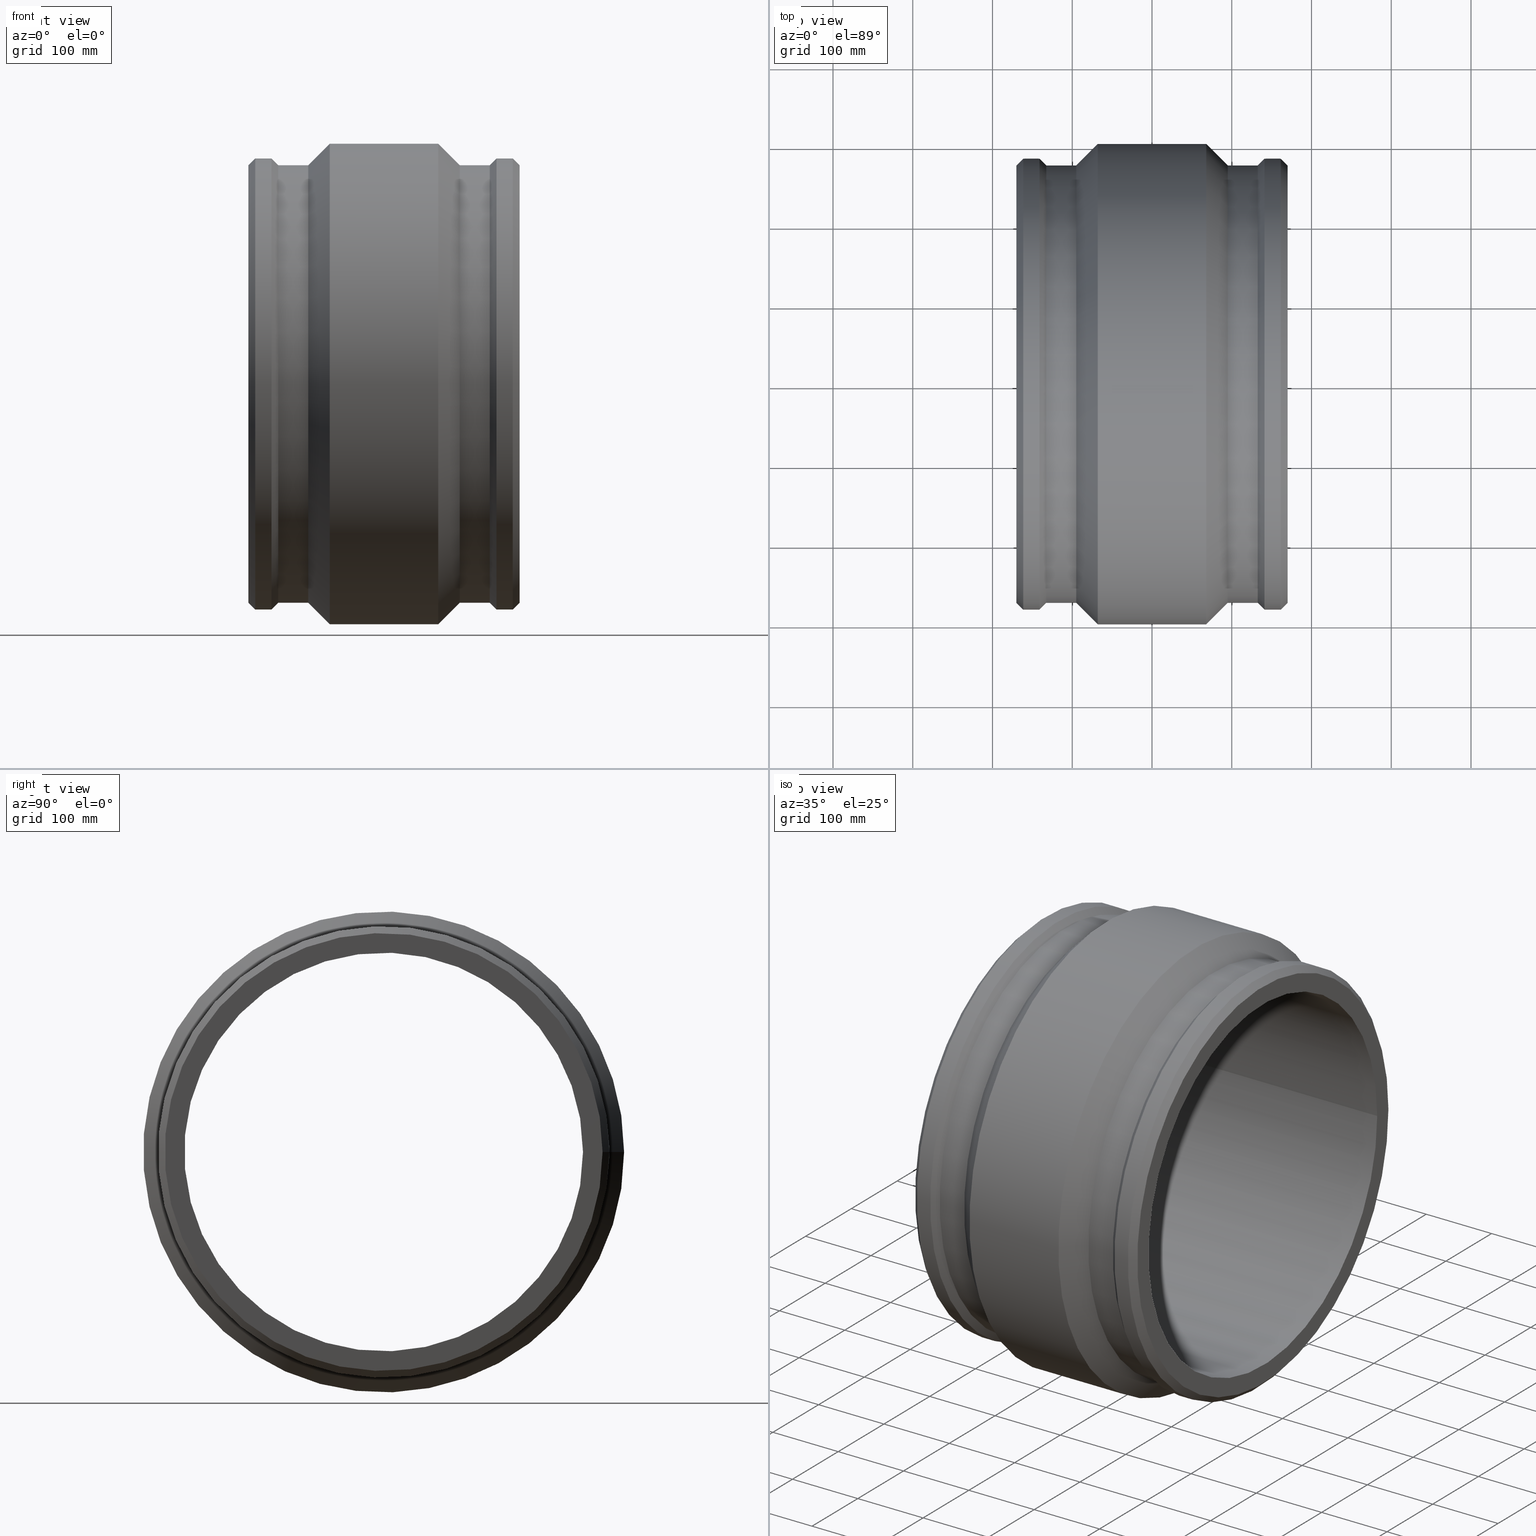
[diagram: canonical four-view strip — front | top / right | iso, engineering-drawing reading convention]
A machine part, canonical four-view strip (front | top / right | iso — engineering-drawing reading convention). The complete STEP part file that produces these views, byte-faithful:
ISO-10303-21;
HEADER;
/* Generated by software containing ST-Developer
 * from STEP Tools, Inc. (www.steptools.com) 
 */

FILE_DESCRIPTION(
/* description */ ('PLASSON COUPLER 500'),
/* implementation_level */ '2;1');

FILE_NAME(
/* name */ 
'C:\\Dropbox\\KIMPROJECTS-Inventor\\99-16-3568-Processing\\ElectroFusi
on Fittings\\490103\\490103500.ipt.stp',
/* time_stamp */ '2017-11-06T09:10:36+02:00',
/* author */ ('KIM'),
/* organization */ (''),
/* preprocessor_version */ 'ST-DEVELOPER v15.6',
/* originating_system */ 'Autodesk Inventor 2015',
/* authorisation */ '');

FILE_SCHEMA (('AUTOMOTIVE_DESIGN { 1 0 10303 214 3 1 1 }'));
ENDSEC;

DATA;
#10=MECHANICAL_DESIGN_GEOMETRIC_PRESENTATION_REPRESENTATION('',(#13),#645);
#11=SHAPE_REPRESENTATION_RELATIONSHIP('SRR','None',#654,#12);
#12=ADVANCED_BREP_SHAPE_REPRESENTATION($,(#14),#644);
#13=STYLED_ITEM('',(#663),#14);
#14=MANIFOLD_SOLID_BREP('Solid1',#321);
#15=CONICAL_SURFACE('',#358,278.755,45.);
#16=CONICAL_SURFACE('',#359,278.755,44.9999999999998);
#17=CONICAL_SURFACE('',#363,288.005,45.);
#18=CONICAL_SURFACE('',#367,288.005,45.);
#19=CONICAL_SURFACE('',#371,278.755,45.0000000000001);
#20=CONICAL_SURFACE('',#372,278.755,45.);
#21=B_SPLINE_CURVE_WITH_KNOTS('',3,(#512,#513,#514,#515,#516,#517,#518,
#519,#520,#521,#522,#523,#524,#525,#526,#527,#528,#529),.UNSPECIFIED.,.F.,
 .F.,(4,2,2,2,2,2,2,2,4),(1.13011682923147,1.41264603418803,1.69517523914459,
1.97770444880377,2.26023365846295,2.54276286812212,2.8252920777813,3.10782128273786,
3.39035048769442),.UNSPECIFIED.);
#22=B_SPLINE_CURVE_WITH_KNOTS('',3,(#532,#533,#534,#535,#536,#537,#538,
#539,#540,#541,#542,#543,#544,#545,#546,#547,#548,#549,#550),
 .UNSPECIFIED.,.F.,.F.,(4,2,2,2,3,2,2,2,4),(-1.13011682923147,-0.847587624274914,
-0.565058419318355,-0.282529209659177,0.,0.282529209659177,0.565058419318354,
0.847587624274914,1.13011682923147),.UNSPECIFIED.);
#23=B_SPLINE_CURVE_WITH_KNOTS('',3,(#567,#568,#569,#570,#571,#572,#573,
#574,#575,#576,#577,#578,#579,#580,#581,#582,#583,#584,#585),
 .UNSPECIFIED.,.F.,.F.,(4,2,2,2,3,2,2,2,4),(-1.13011682923147,-0.847587624274914,
-0.565058419318355,-0.282529209659177,0.,0.282529209659177,0.565058419318354,
0.847587624274914,1.13011682923147),.UNSPECIFIED.);
#24=B_SPLINE_CURVE_WITH_KNOTS('',3,(#587,#588,#589,#590,#591,#592,#593,
#594,#595,#596,#597,#598,#599,#600,#601,#602,#603,#604),.UNSPECIFIED.,.F.,
 .F.,(4,2,2,2,2,2,2,2,4),(1.13011682923147,1.41264603418803,1.69517523914459,
1.97770444880377,2.26023365846295,2.54276286812212,2.8252920777813,3.10782128273786,
3.39035048769442),.UNSPECIFIED.);
#25=FACE_BOUND('',#94,.T.);
#26=FACE_BOUND('',#96,.T.);
#27=FACE_BOUND('',#98,.T.);
#28=FACE_BOUND('',#100,.T.);
#29=FACE_BOUND('',#102,.T.);
#30=FACE_BOUND('',#106,.T.);
#31=FACE_BOUND('',#108,.T.);
#32=FACE_BOUND('',#109,.T.);
#33=FACE_BOUND('',#111,.T.);
#34=FACE_BOUND('',#113,.T.);
#35=FACE_BOUND('',#117,.T.);
#36=FACE_BOUND('',#118,.T.);
#37=FACE_BOUND('',#120,.T.);
#38=FACE_BOUND('',#122,.T.);
#39=FACE_BOUND('',#124,.T.);
#40=FACE_BOUND('',#126,.T.);
#41=FACE_BOUND('',#128,.T.);
#42=FACE_BOUND('',#130,.T.);
#43=FACE_BOUND('',#132,.T.);
#44=FACE_BOUND('',#134,.T.);
#45=FACE_BOUND('',#136,.T.);
#46=FACE_BOUND('',#138,.T.);
#47=FACE_BOUND('',#140,.T.);
#48=FACE_BOUND('',#142,.T.);
#49=CYLINDRICAL_SURFACE('',#327,2.);
#50=CYLINDRICAL_SURFACE('',#331,2.);
#51=CYLINDRICAL_SURFACE('',#335,5.);
#52=CYLINDRICAL_SURFACE('',#337,7.5);
#53=CYLINDRICAL_SURFACE('',#339,7.5);
#54=CYLINDRICAL_SURFACE('',#342,283.);
#55=CYLINDRICAL_SURFACE('',#349,5.);
#56=CYLINDRICAL_SURFACE('',#350,7.5);
#57=CYLINDRICAL_SURFACE('',#351,7.5);
#58=CYLINDRICAL_SURFACE('',#352,283.);
#59=CYLINDRICAL_SURFACE('',#361,274.51);
#60=CYLINDRICAL_SURFACE('',#365,301.5);
#61=CYLINDRICAL_SURFACE('',#369,274.51);
#62=CYLINDRICAL_SURFACE('',#376,250.);
#63=FACE_OUTER_BOUND('',#91,.T.);
#64=FACE_OUTER_BOUND('',#92,.T.);
#65=FACE_OUTER_BOUND('',#93,.T.);
#66=FACE_OUTER_BOUND('',#95,.T.);
#67=FACE_OUTER_BOUND('',#97,.T.);
#68=FACE_OUTER_BOUND('',#99,.T.);
#69=FACE_OUTER_BOUND('',#101,.T.);
#70=FACE_OUTER_BOUND('',#103,.T.);
#71=FACE_OUTER_BOUND('',#104,.T.);
#72=FACE_OUTER_BOUND('',#105,.T.);
#73=FACE_OUTER_BOUND('',#107,.T.);
#74=FACE_OUTER_BOUND('',#110,.T.);
#75=FACE_OUTER_BOUND('',#112,.T.);
#76=FACE_OUTER_BOUND('',#114,.T.);
#77=FACE_OUTER_BOUND('',#115,.T.);
#78=FACE_OUTER_BOUND('',#116,.T.);
#79=FACE_OUTER_BOUND('',#119,.T.);
#80=FACE_OUTER_BOUND('',#121,.T.);
#81=FACE_OUTER_BOUND('',#123,.T.);
#82=FACE_OUTER_BOUND('',#125,.T.);
#83=FACE_OUTER_BOUND('',#127,.T.);
#84=FACE_OUTER_BOUND('',#129,.T.);
#85=FACE_OUTER_BOUND('',#131,.T.);
#86=FACE_OUTER_BOUND('',#133,.T.);
#87=FACE_OUTER_BOUND('',#135,.T.);
#88=FACE_OUTER_BOUND('',#137,.T.);
#89=FACE_OUTER_BOUND('',#139,.T.);
#90=FACE_OUTER_BOUND('',#141,.T.);
#91=EDGE_LOOP('',(#225));
#92=EDGE_LOOP('',(#226));
#93=EDGE_LOOP('',(#227));
#94=EDGE_LOOP('',(#228));
#95=EDGE_LOOP('',(#229));
#96=EDGE_LOOP('',(#230));
#97=EDGE_LOOP('',(#231));
#98=EDGE_LOOP('',(#232));
#99=EDGE_LOOP('',(#233));
#100=EDGE_LOOP('',(#234));
#101=EDGE_LOOP('',(#235));
#102=EDGE_LOOP('',(#236));
#103=EDGE_LOOP('',(#237,#238));
#104=EDGE_LOOP('',(#239,#240));
#105=EDGE_LOOP('',(#241,#242));
#106=EDGE_LOOP('',(#243));
#107=EDGE_LOOP('',(#244));
#108=EDGE_LOOP('',(#245,#246));
#109=EDGE_LOOP('',(#247));
#110=EDGE_LOOP('',(#248,#249));
#111=EDGE_LOOP('',(#250));
#112=EDGE_LOOP('',(#251));
#113=EDGE_LOOP('',(#252));
#114=EDGE_LOOP('',(#253,#254));
#115=EDGE_LOOP('',(#255,#256));
#116=EDGE_LOOP('',(#257));
#117=EDGE_LOOP('',(#258,#259));
#118=EDGE_LOOP('',(#260));
#119=EDGE_LOOP('',(#261));
#120=EDGE_LOOP('',(#262));
#121=EDGE_LOOP('',(#263));
#122=EDGE_LOOP('',(#264));
#123=EDGE_LOOP('',(#265));
#124=EDGE_LOOP('',(#266));
#125=EDGE_LOOP('',(#267));
#126=EDGE_LOOP('',(#268));
#127=EDGE_LOOP('',(#269));
#128=EDGE_LOOP('',(#270));
#129=EDGE_LOOP('',(#271));
#130=EDGE_LOOP('',(#272));
#131=EDGE_LOOP('',(#273));
#132=EDGE_LOOP('',(#274));
#133=EDGE_LOOP('',(#275));
#134=EDGE_LOOP('',(#276));
#135=EDGE_LOOP('',(#277));
#136=EDGE_LOOP('',(#278));
#137=EDGE_LOOP('',(#279));
#138=EDGE_LOOP('',(#280));
#139=EDGE_LOOP('',(#281));
#140=EDGE_LOOP('',(#282));
#141=EDGE_LOOP('',(#283));
#142=EDGE_LOOP('',(#284));
#143=CIRCLE('',#324,2.);
#144=CIRCLE('',#326,2.);
#145=CIRCLE('',#328,2.);
#146=CIRCLE('',#330,5.);
#147=CIRCLE('',#332,2.);
#148=CIRCLE('',#334,5.);
#149=CIRCLE('',#336,5.);
#150=CIRCLE('',#338,7.5);
#151=CIRCLE('',#340,7.5);
#152=CIRCLE('',#343,283.);
#153=CIRCLE('',#344,283.);
#154=CIRCLE('',#346,7.5);
#155=CIRCLE('',#347,7.5);
#156=CIRCLE('',#348,5.);
#157=CIRCLE('',#353,283.);
#158=CIRCLE('',#354,283.);
#159=CIRCLE('',#356,274.51);
#160=CIRCLE('',#357,250.);
#161=CIRCLE('',#360,274.51);
#162=CIRCLE('',#362,274.51);
#163=CIRCLE('',#364,301.5);
#164=CIRCLE('',#366,301.5);
#165=CIRCLE('',#368,274.51);
#166=CIRCLE('',#370,274.51);
#167=CIRCLE('',#373,274.51);
#168=CIRCLE('',#375,250.);
#169=VERTEX_POINT('',#489);
#170=VERTEX_POINT('',#492);
#171=VERTEX_POINT('',#495);
#172=VERTEX_POINT('',#498);
#173=VERTEX_POINT('',#501);
#174=VERTEX_POINT('',#504);
#175=VERTEX_POINT('',#507);
#176=VERTEX_POINT('',#510);
#177=VERTEX_POINT('',#511);
#178=VERTEX_POINT('',#554);
#179=VERTEX_POINT('',#556);
#180=VERTEX_POINT('',#559);
#181=VERTEX_POINT('',#560);
#182=VERTEX_POINT('',#563);
#183=VERTEX_POINT('',#606);
#184=VERTEX_POINT('',#608);
#185=VERTEX_POINT('',#611);
#186=VERTEX_POINT('',#613);
#187=VERTEX_POINT('',#617);
#188=VERTEX_POINT('',#620);
#189=VERTEX_POINT('',#623);
#190=VERTEX_POINT('',#626);
#191=VERTEX_POINT('',#629);
#192=VERTEX_POINT('',#632);
#193=VERTEX_POINT('',#636);
#194=VERTEX_POINT('',#639);
#195=EDGE_CURVE('',#169,#169,#143,.T.);
#196=EDGE_CURVE('',#170,#170,#144,.T.);
#197=EDGE_CURVE('',#171,#171,#145,.T.);
#198=EDGE_CURVE('',#172,#172,#146,.T.);
#199=EDGE_CURVE('',#173,#173,#147,.T.);
#200=EDGE_CURVE('',#174,#174,#148,.T.);
#201=EDGE_CURVE('',#175,#175,#149,.T.);
#202=EDGE_CURVE('',#176,#177,#21,.T.);
#203=EDGE_CURVE('',#177,#176,#150,.T.);
#204=EDGE_CURVE('',#177,#176,#22,.T.);
#205=EDGE_CURVE('',#176,#177,#151,.T.);
#206=EDGE_CURVE('',#178,#178,#152,.T.);
#207=EDGE_CURVE('',#179,#179,#153,.T.);
#208=EDGE_CURVE('',#180,#181,#154,.T.);
#209=EDGE_CURVE('',#181,#180,#155,.T.);
#210=EDGE_CURVE('',#182,#182,#156,.T.);
#211=EDGE_CURVE('',#181,#180,#23,.T.);
#212=EDGE_CURVE('',#180,#181,#24,.T.);
#213=EDGE_CURVE('',#183,#183,#157,.T.);
#214=EDGE_CURVE('',#184,#184,#158,.T.);
#215=EDGE_CURVE('',#185,#185,#159,.T.);
#216=EDGE_CURVE('',#186,#186,#160,.T.);
#217=EDGE_CURVE('',#187,#187,#161,.T.);
#218=EDGE_CURVE('',#188,#188,#162,.T.);
#219=EDGE_CURVE('',#189,#189,#163,.T.);
#220=EDGE_CURVE('',#190,#190,#164,.T.);
#221=EDGE_CURVE('',#191,#191,#165,.T.);
#222=EDGE_CURVE('',#192,#192,#166,.T.);
#223=EDGE_CURVE('',#193,#193,#167,.T.);
#224=EDGE_CURVE('',#194,#194,#168,.T.);
#225=ORIENTED_EDGE('',*,*,#195,.F.);
#226=ORIENTED_EDGE('',*,*,#196,.F.);
#227=ORIENTED_EDGE('',*,*,#195,.T.);
#228=ORIENTED_EDGE('',*,*,#197,.F.);
#229=ORIENTED_EDGE('',*,*,#198,.T.);
#230=ORIENTED_EDGE('',*,*,#197,.T.);
#231=ORIENTED_EDGE('',*,*,#196,.T.);
#232=ORIENTED_EDGE('',*,*,#199,.T.);
#233=ORIENTED_EDGE('',*,*,#200,.F.);
#234=ORIENTED_EDGE('',*,*,#199,.F.);
#235=ORIENTED_EDGE('',*,*,#200,.T.);
#236=ORIENTED_EDGE('',*,*,#201,.T.);
#237=ORIENTED_EDGE('',*,*,#202,.F.);
#238=ORIENTED_EDGE('',*,*,#203,.F.);
#239=ORIENTED_EDGE('',*,*,#204,.F.);
#240=ORIENTED_EDGE('',*,*,#205,.F.);
#241=ORIENTED_EDGE('',*,*,#205,.T.);
#242=ORIENTED_EDGE('',*,*,#203,.T.);
#243=ORIENTED_EDGE('',*,*,#201,.F.);
#244=ORIENTED_EDGE('',*,*,#206,.T.);
#245=ORIENTED_EDGE('',*,*,#204,.T.);
#246=ORIENTED_EDGE('',*,*,#202,.T.);
#247=ORIENTED_EDGE('',*,*,#207,.F.);
#248=ORIENTED_EDGE('',*,*,#208,.F.);
#249=ORIENTED_EDGE('',*,*,#209,.F.);
#250=ORIENTED_EDGE('',*,*,#210,.T.);
#251=ORIENTED_EDGE('',*,*,#198,.F.);
#252=ORIENTED_EDGE('',*,*,#210,.F.);
#253=ORIENTED_EDGE('',*,*,#211,.F.);
#254=ORIENTED_EDGE('',*,*,#209,.T.);
#255=ORIENTED_EDGE('',*,*,#212,.F.);
#256=ORIENTED_EDGE('',*,*,#208,.T.);
#257=ORIENTED_EDGE('',*,*,#213,.T.);
#258=ORIENTED_EDGE('',*,*,#212,.T.);
#259=ORIENTED_EDGE('',*,*,#211,.T.);
#260=ORIENTED_EDGE('',*,*,#214,.F.);
#261=ORIENTED_EDGE('',*,*,#215,.F.);
#262=ORIENTED_EDGE('',*,*,#216,.T.);
#263=ORIENTED_EDGE('',*,*,#215,.T.);
#264=ORIENTED_EDGE('',*,*,#213,.F.);
#265=ORIENTED_EDGE('',*,*,#214,.T.);
#266=ORIENTED_EDGE('',*,*,#217,.F.);
#267=ORIENTED_EDGE('',*,*,#217,.T.);
#268=ORIENTED_EDGE('',*,*,#218,.F.);
#269=ORIENTED_EDGE('',*,*,#218,.T.);
#270=ORIENTED_EDGE('',*,*,#219,.F.);
#271=ORIENTED_EDGE('',*,*,#219,.T.);
#272=ORIENTED_EDGE('',*,*,#220,.F.);
#273=ORIENTED_EDGE('',*,*,#220,.T.);
#274=ORIENTED_EDGE('',*,*,#221,.F.);
#275=ORIENTED_EDGE('',*,*,#221,.T.);
#276=ORIENTED_EDGE('',*,*,#222,.F.);
#277=ORIENTED_EDGE('',*,*,#222,.T.);
#278=ORIENTED_EDGE('',*,*,#206,.F.);
#279=ORIENTED_EDGE('',*,*,#207,.T.);
#280=ORIENTED_EDGE('',*,*,#223,.F.);
#281=ORIENTED_EDGE('',*,*,#223,.T.);
#282=ORIENTED_EDGE('',*,*,#224,.F.);
#283=ORIENTED_EDGE('',*,*,#224,.T.);
#284=ORIENTED_EDGE('',*,*,#216,.F.);
#285=PLANE('',#323);
#286=PLANE('',#325);
#287=PLANE('',#329);
#288=PLANE('',#333);
#289=PLANE('',#341);
#290=PLANE('',#345);
#291=PLANE('',#355);
#292=PLANE('',#374);
#293=ADVANCED_FACE('',(#63),#285,.F.);
#294=ADVANCED_FACE('',(#64),#286,.F.);
#295=ADVANCED_FACE('',(#65,#25),#49,.T.);
#296=ADVANCED_FACE('',(#66,#26),#287,.F.);
#297=ADVANCED_FACE('',(#67,#27),#50,.T.);
#298=ADVANCED_FACE('',(#68,#28),#288,.T.);
#299=ADVANCED_FACE('',(#69,#29),#51,.F.);
#300=ADVANCED_FACE('',(#70),#52,.T.);
#301=ADVANCED_FACE('',(#71),#53,.T.);
#302=ADVANCED_FACE('',(#72,#30),#289,.F.);
#303=ADVANCED_FACE('',(#73,#31,#32),#54,.T.);
#304=ADVANCED_FACE('',(#74,#33),#290,.T.);
#305=ADVANCED_FACE('',(#75,#34),#55,.F.);
#306=ADVANCED_FACE('',(#76),#56,.T.);
#307=ADVANCED_FACE('',(#77),#57,.T.);
#308=ADVANCED_FACE('',(#78,#35,#36),#58,.T.);
#309=ADVANCED_FACE('',(#79,#37),#291,.T.);
#310=ADVANCED_FACE('',(#80,#38),#15,.T.);
#311=ADVANCED_FACE('',(#81,#39),#16,.T.);
#312=ADVANCED_FACE('',(#82,#40),#59,.T.);
#313=ADVANCED_FACE('',(#83,#41),#17,.T.);
#314=ADVANCED_FACE('',(#84,#42),#60,.T.);
#315=ADVANCED_FACE('',(#85,#43),#18,.T.);
#316=ADVANCED_FACE('',(#86,#44),#61,.T.);
#317=ADVANCED_FACE('',(#87,#45),#19,.T.);
#318=ADVANCED_FACE('',(#88,#46),#20,.T.);
#319=ADVANCED_FACE('',(#89,#47),#292,.T.);
#320=ADVANCED_FACE('',(#90,#48),#62,.F.);
#321=CLOSED_SHELL('',(#293,#294,#295,#296,#297,#298,#299,#300,#301,#302,
#303,#304,#305,#306,#307,#308,#309,#310,#311,#312,#313,#314,#315,#316,#317,
#318,#319,#320));
#322=AXIS2_PLACEMENT_3D('placement',#487,#377,#378);
#323=AXIS2_PLACEMENT_3D('',#488,#379,#380);
#324=AXIS2_PLACEMENT_3D('',#490,#381,#382);
#325=AXIS2_PLACEMENT_3D('',#491,#383,#384);
#326=AXIS2_PLACEMENT_3D('',#493,#385,#386);
#327=AXIS2_PLACEMENT_3D('',#494,#387,#388);
#328=AXIS2_PLACEMENT_3D('',#496,#389,#390);
#329=AXIS2_PLACEMENT_3D('',#497,#391,#392);
#330=AXIS2_PLACEMENT_3D('',#499,#393,#394);
#331=AXIS2_PLACEMENT_3D('',#500,#395,#396);
#332=AXIS2_PLACEMENT_3D('',#502,#397,#398);
#333=AXIS2_PLACEMENT_3D('',#503,#399,#400);
#334=AXIS2_PLACEMENT_3D('',#505,#401,#402);
#335=AXIS2_PLACEMENT_3D('',#506,#403,#404);
#336=AXIS2_PLACEMENT_3D('',#508,#405,#406);
#337=AXIS2_PLACEMENT_3D('',#509,#407,#408);
#338=AXIS2_PLACEMENT_3D('',#530,#409,#410);
#339=AXIS2_PLACEMENT_3D('',#531,#411,#412);
#340=AXIS2_PLACEMENT_3D('',#551,#413,#414);
#341=AXIS2_PLACEMENT_3D('',#552,#415,#416);
#342=AXIS2_PLACEMENT_3D('',#553,#417,#418);
#343=AXIS2_PLACEMENT_3D('',#555,#419,#420);
#344=AXIS2_PLACEMENT_3D('',#557,#421,#422);
#345=AXIS2_PLACEMENT_3D('',#558,#423,#424);
#346=AXIS2_PLACEMENT_3D('',#561,#425,#426);
#347=AXIS2_PLACEMENT_3D('',#562,#427,#428);
#348=AXIS2_PLACEMENT_3D('',#564,#429,#430);
#349=AXIS2_PLACEMENT_3D('',#565,#431,#432);
#350=AXIS2_PLACEMENT_3D('',#566,#433,#434);
#351=AXIS2_PLACEMENT_3D('',#586,#435,#436);
#352=AXIS2_PLACEMENT_3D('',#605,#437,#438);
#353=AXIS2_PLACEMENT_3D('',#607,#439,#440);
#354=AXIS2_PLACEMENT_3D('',#609,#441,#442);
#355=AXIS2_PLACEMENT_3D('',#610,#443,#444);
#356=AXIS2_PLACEMENT_3D('',#612,#445,#446);
#357=AXIS2_PLACEMENT_3D('',#614,#447,#448);
#358=AXIS2_PLACEMENT_3D('',#615,#449,#450);
#359=AXIS2_PLACEMENT_3D('',#616,#451,#452);
#360=AXIS2_PLACEMENT_3D('',#618,#453,#454);
#361=AXIS2_PLACEMENT_3D('',#619,#455,#456);
#362=AXIS2_PLACEMENT_3D('',#621,#457,#458);
#363=AXIS2_PLACEMENT_3D('',#622,#459,#460);
#364=AXIS2_PLACEMENT_3D('',#624,#461,#462);
#365=AXIS2_PLACEMENT_3D('',#625,#463,#464);
#366=AXIS2_PLACEMENT_3D('',#627,#465,#466);
#367=AXIS2_PLACEMENT_3D('',#628,#467,#468);
#368=AXIS2_PLACEMENT_3D('',#630,#469,#470);
#369=AXIS2_PLACEMENT_3D('',#631,#471,#472);
#370=AXIS2_PLACEMENT_3D('',#633,#473,#474);
#371=AXIS2_PLACEMENT_3D('',#634,#475,#476);
#372=AXIS2_PLACEMENT_3D('',#635,#477,#478);
#373=AXIS2_PLACEMENT_3D('',#637,#479,#480);
#374=AXIS2_PLACEMENT_3D('',#638,#481,#482);
#375=AXIS2_PLACEMENT_3D('',#640,#483,#484);
#376=AXIS2_PLACEMENT_3D('',#641,#485,#486);
#377=DIRECTION('axis',(0.,0.,1.));
#378=DIRECTION('refdir',(1.,0.,0.));
#379=DIRECTION('center_axis',(0.,-1.,0.));
#380=DIRECTION('ref_axis',(0.,0.,-1.));
#381=DIRECTION('center_axis',(0.,-1.,0.));
#382=DIRECTION('ref_axis',(1.,0.,-6.12323399573677E-17));
#383=DIRECTION('center_axis',(0.,-1.,0.));
#384=DIRECTION('ref_axis',(0.,0.,-1.));
#385=DIRECTION('center_axis',(0.,-1.,0.));
#386=DIRECTION('ref_axis',(-1.,0.,-6.12323399573677E-17));
#387=DIRECTION('center_axis',(0.,1.,0.));
#388=DIRECTION('ref_axis',(1.,0.,-6.12323399573677E-17));
#389=DIRECTION('center_axis',(0.,-1.,0.));
#390=DIRECTION('ref_axis',(1.,0.,-6.12323399573677E-17));
#391=DIRECTION('center_axis',(0.,-1.,0.));
#392=DIRECTION('ref_axis',(0.,0.,1.));
#393=DIRECTION('center_axis',(0.,1.,0.));
#394=DIRECTION('ref_axis',(1.,0.,-8.62816615085482E-32));
#395=DIRECTION('center_axis',(0.,-1.,0.));
#396=DIRECTION('ref_axis',(-1.,0.,-6.12323399573677E-17));
#397=DIRECTION('center_axis',(0.,1.,0.));
#398=DIRECTION('ref_axis',(-1.,0.,-6.12323399573677E-17));
#399=DIRECTION('center_axis',(0.,1.,0.));
#400=DIRECTION('ref_axis',(0.,0.,1.));
#401=DIRECTION('center_axis',(0.,-1.,0.));
#402=DIRECTION('ref_axis',(-1.,0.,-8.62816615085482E-32));
#403=DIRECTION('center_axis',(0.,1.,0.));
#404=DIRECTION('ref_axis',(-1.,0.,0.));
#405=DIRECTION('center_axis',(0.,1.,0.));
#406=DIRECTION('ref_axis',(-1.,0.,0.));
#407=DIRECTION('center_axis',(0.,1.,0.));
#408=DIRECTION('ref_axis',(-1.,0.,0.));
#409=DIRECTION('center_axis',(0.,1.,0.));
#410=DIRECTION('ref_axis',(-1.,0.,0.));
#411=DIRECTION('center_axis',(0.,1.,0.));
#412=DIRECTION('ref_axis',(-1.,0.,0.));
#413=DIRECTION('center_axis',(0.,1.,0.));
#414=DIRECTION('ref_axis',(-1.,0.,0.));
#415=DIRECTION('center_axis',(0.,-1.,0.));
#416=DIRECTION('ref_axis',(0.,0.,1.));
#417=DIRECTION('center_axis',(1.,1.83697019872103E-16,0.));
#418=DIRECTION('ref_axis',(-1.77635683940025E-16,1.,0.));
#419=DIRECTION('center_axis',(1.,1.83697019872103E-16,0.));
#420=DIRECTION('ref_axis',(0.,0.,-1.));
#421=DIRECTION('center_axis',(1.,1.83697019872103E-16,0.));
#422=DIRECTION('ref_axis',(0.,0.,-1.));
#423=DIRECTION('center_axis',(0.,1.,0.));
#424=DIRECTION('ref_axis',(0.,0.,1.));
#425=DIRECTION('center_axis',(0.,-1.,0.));
#426=DIRECTION('ref_axis',(1.,0.,0.));
#427=DIRECTION('center_axis',(0.,-1.,0.));
#428=DIRECTION('ref_axis',(1.,0.,0.));
#429=DIRECTION('center_axis',(0.,-1.,0.));
#430=DIRECTION('ref_axis',(1.,0.,0.));
#431=DIRECTION('center_axis',(0.,-1.,0.));
#432=DIRECTION('ref_axis',(1.,0.,0.));
#433=DIRECTION('center_axis',(0.,-1.,0.));
#434=DIRECTION('ref_axis',(1.,0.,0.));
#435=DIRECTION('center_axis',(0.,-1.,0.));
#436=DIRECTION('ref_axis',(1.,0.,0.));
#437=DIRECTION('center_axis',(1.,1.83697019872103E-16,0.));
#438=DIRECTION('ref_axis',(-1.77635683940025E-16,1.,0.));
#439=DIRECTION('center_axis',(1.,1.83697019872103E-16,0.));
#440=DIRECTION('ref_axis',(0.,0.,-1.));
#441=DIRECTION('center_axis',(1.,1.83697019872103E-16,0.));
#442=DIRECTION('ref_axis',(0.,0.,-1.));
#443=DIRECTION('center_axis',(-1.,-1.83697019872103E-16,0.));
#444=DIRECTION('ref_axis',(0.,0.,1.));
#445=DIRECTION('center_axis',(1.,1.83697019872103E-16,0.));
#446=DIRECTION('ref_axis',(0.,0.,-1.));
#447=DIRECTION('center_axis',(1.,1.83697019872103E-16,0.));
#448=DIRECTION('ref_axis',(0.,0.,-1.));
#449=DIRECTION('center_axis',(1.,1.83697019872103E-16,0.));
#450=DIRECTION('ref_axis',(-1.77635683940025E-16,1.,0.));
#451=DIRECTION('center_axis',(-1.,-1.83697019872103E-16,0.));
#452=DIRECTION('ref_axis',(-1.77635683940025E-16,1.,0.));
#453=DIRECTION('center_axis',(1.,1.83697019872103E-16,0.));
#454=DIRECTION('ref_axis',(0.,0.,-1.));
#455=DIRECTION('center_axis',(1.,1.83697019872103E-16,0.));
#456=DIRECTION('ref_axis',(-1.77635683940025E-16,1.,0.));
#457=DIRECTION('center_axis',(1.,1.83697019872103E-16,0.));
#458=DIRECTION('ref_axis',(0.,0.,-1.));
#459=DIRECTION('center_axis',(1.,1.83697019872103E-16,0.));
#460=DIRECTION('ref_axis',(-1.77635683940025E-16,1.,0.));
#461=DIRECTION('center_axis',(1.,1.83697019872103E-16,0.));
#462=DIRECTION('ref_axis',(0.,0.,-1.));
#463=DIRECTION('center_axis',(1.,1.83697019872103E-16,0.));
#464=DIRECTION('ref_axis',(-1.77635683940025E-16,1.,0.));
#465=DIRECTION('center_axis',(1.,1.83697019872103E-16,0.));
#466=DIRECTION('ref_axis',(0.,0.,-1.));
#467=DIRECTION('center_axis',(-1.,-1.83697019872103E-16,0.));
#468=DIRECTION('ref_axis',(-1.77635683940025E-16,1.,0.));
#469=DIRECTION('center_axis',(1.,1.83697019872103E-16,0.));
#470=DIRECTION('ref_axis',(0.,0.,-1.));
#471=DIRECTION('center_axis',(1.,1.83697019872103E-16,0.));
#472=DIRECTION('ref_axis',(-1.77635683940025E-16,1.,0.));
#473=DIRECTION('center_axis',(1.,1.83697019872103E-16,0.));
#474=DIRECTION('ref_axis',(0.,0.,-1.));
#475=DIRECTION('center_axis',(1.,1.83697019872103E-16,0.));
#476=DIRECTION('ref_axis',(-1.77635683940025E-16,1.,0.));
#477=DIRECTION('center_axis',(-1.,-1.83697019872103E-16,0.));
#478=DIRECTION('ref_axis',(-1.77635683940025E-16,1.,0.));
#479=DIRECTION('center_axis',(1.,1.83697019872103E-16,0.));
#480=DIRECTION('ref_axis',(0.,0.,-1.));
#481=DIRECTION('center_axis',(1.,1.83697019872103E-16,0.));
#482=DIRECTION('ref_axis',(0.,0.,-1.));
#483=DIRECTION('center_axis',(1.,1.83697019872103E-16,0.));
#484=DIRECTION('ref_axis',(0.,0.,-1.));
#485=DIRECTION('center_axis',(1.,1.83697019872103E-16,0.));
#486=DIRECTION('ref_axis',(-1.77635683940025E-16,1.,0.));
#487=CARTESIAN_POINT('',(0.,0.,0.));
#488=CARTESIAN_POINT('Origin',(-151.3,280.,-7.73051134300975E-15));
#489=CARTESIAN_POINT('',(-149.3,280.,-5.94881241222329E-29));
#490=CARTESIAN_POINT('Origin',(-151.3,280.,0.));
#491=CARTESIAN_POINT('Origin',(151.3,280.,-2.7608969082178E-15));
#492=CARTESIAN_POINT('',(149.3,280.,-5.06596612571619E-29));
#493=CARTESIAN_POINT('Origin',(151.3,280.,0.));
#494=CARTESIAN_POINT('Origin',(-151.3,283.,0.));
#495=CARTESIAN_POINT('',(-153.3,269.,-1.22464679914735E-16));
#496=CARTESIAN_POINT('Origin',(-151.3,269.,0.));
#497=CARTESIAN_POINT('Origin',(-151.3,269.,0.));
#498=CARTESIAN_POINT('',(-156.3,269.,6.12323399573676E-16));
#499=CARTESIAN_POINT('Origin',(-151.3,269.,0.));
#500=CARTESIAN_POINT('Origin',(151.3,283.,0.));
#501=CARTESIAN_POINT('',(153.3,269.,-1.22464679914735E-16));
#502=CARTESIAN_POINT('Origin',(151.3,269.,0.));
#503=CARTESIAN_POINT('Origin',(151.3,269.,0.));
#504=CARTESIAN_POINT('',(156.3,269.,6.12323399573676E-16));
#505=CARTESIAN_POINT('Origin',(151.3,269.,0.));
#506=CARTESIAN_POINT('Origin',(151.3,283.,0.));
#507=CARTESIAN_POINT('',(156.3,283.,6.12323399573677E-16));
#508=CARTESIAN_POINT('Origin',(151.3,283.,0.));
#509=CARTESIAN_POINT('Origin',(151.3,283.,0.));
#510=CARTESIAN_POINT('',(143.8,283.,0.));
#511=CARTESIAN_POINT('',(158.8,283.,9.18485099360515E-16));
#512=CARTESIAN_POINT('Ctrl Pts',(143.8,283.,-3.88578058618805E-15));
#513=CARTESIAN_POINT('Ctrl Pts',(143.8,283.,-0.941764016521868));
#514=CARTESIAN_POINT('Ctrl Pts',(143.988220769489,282.994815743762,-1.94627096837092));
#515=CARTESIAN_POINT('Ctrl Pts',(144.753636937917,282.976074062244,-3.7941029043155));
#516=CARTESIAN_POINT('Ctrl Pts',(145.330829895338,282.962785124906,-4.6374316131365));
#517=CARTESIAN_POINT('Ctrl Pts',(146.662568397947,282.937824522905,-5.96917011574492));
#518=CARTESIAN_POINT('Ctrl Pts',(147.505897101103,282.92453354899,-6.54636306621528));
#519=CARTESIAN_POINT('Ctrl Pts',(149.353729022213,282.905787211788,-7.31177922472257));
#520=CARTESIAN_POINT('Ctrl Pts',(150.358235967803,282.900600918415,-7.5));
#521=CARTESIAN_POINT('Ctrl Pts',(152.241764032197,282.900600918415,-7.5));
#522=CARTESIAN_POINT('Ctrl Pts',(153.246270977787,282.905787211788,-7.31177922472257));
#523=CARTESIAN_POINT('Ctrl Pts',(155.094102898897,282.92453354899,-6.54636306621528));
#524=CARTESIAN_POINT('Ctrl Pts',(155.937431602053,282.937824522905,-5.96917011574492));
#525=CARTESIAN_POINT('Ctrl Pts',(157.269170104662,282.962785124906,-4.6374316131365));
#526=CARTESIAN_POINT('Ctrl Pts',(157.846363062083,282.976074062244,-3.79410290431551));
#527=CARTESIAN_POINT('Ctrl Pts',(158.611779230511,282.994815743762,-1.94627096837092));
#528=CARTESIAN_POINT('Ctrl Pts',(158.8,283.,-0.941764016521866));
#529=CARTESIAN_POINT('Ctrl Pts',(158.8,283.,-8.32667268468867E-16));
#530=CARTESIAN_POINT('Origin',(151.3,283.,0.));
#531=CARTESIAN_POINT('Origin',(151.3,283.,0.));
#532=CARTESIAN_POINT('Ctrl Pts',(158.8,283.,-1.11022302462516E-15));
#533=CARTESIAN_POINT('Ctrl Pts',(158.8,283.,0.941764016521864));
#534=CARTESIAN_POINT('Ctrl Pts',(158.611779230511,282.994815743762,1.94627096837092));
#535=CARTESIAN_POINT('Ctrl Pts',(157.846363062083,282.976074062244,3.7941029043155));
#536=CARTESIAN_POINT('Ctrl Pts',(157.269170104662,282.962785124906,4.6374316131365));
#537=CARTESIAN_POINT('Ctrl Pts',(155.937431602053,282.937824522905,5.96917011574492));
#538=CARTESIAN_POINT('Ctrl Pts',(155.094102898897,282.92453354899,6.54636306621528));
#539=CARTESIAN_POINT('Ctrl Pts',(153.246270977787,282.905787211788,7.31177922472257));
#540=CARTESIAN_POINT('Ctrl Pts',(152.241764032197,282.900600918415,7.5));
#541=CARTESIAN_POINT('Ctrl Pts',(151.3,282.900600918415,7.5));
#542=CARTESIAN_POINT('Ctrl Pts',(150.358235967803,282.900600918415,7.5));
#543=CARTESIAN_POINT('Ctrl Pts',(149.353729022213,282.905787211788,7.31177922472257));
#544=CARTESIAN_POINT('Ctrl Pts',(147.505897101103,282.92453354899,6.54636306621528));
#545=CARTESIAN_POINT('Ctrl Pts',(146.662568397947,282.937824522905,5.96917011574492));
#546=CARTESIAN_POINT('Ctrl Pts',(145.330829895338,282.962785124906,4.6374316131365));
#547=CARTESIAN_POINT('Ctrl Pts',(144.753636937917,282.976074062244,3.7941029043155));
#548=CARTESIAN_POINT('Ctrl Pts',(143.988220769489,282.994815743762,1.94627096837092));
#549=CARTESIAN_POINT('Ctrl Pts',(143.8,283.,0.941764016521869));
#550=CARTESIAN_POINT('Ctrl Pts',(143.8,283.,3.88578058618805E-15));
#551=CARTESIAN_POINT('Origin',(151.3,283.,0.));
#552=CARTESIAN_POINT('Origin',(151.3,283.,1.2335811384724E-16));
#553=CARTESIAN_POINT('Origin',(151.3,5.90218524849067E-14,0.));
#554=CARTESIAN_POINT('',(141.09,283.,0.));
#555=CARTESIAN_POINT('Origin',(141.09,5.71463059120125E-14,0.));
#556=CARTESIAN_POINT('',(161.51,283.,0.));
#557=CARTESIAN_POINT('Origin',(161.51,6.08973990578009E-14,0.));
#558=CARTESIAN_POINT('Origin',(-151.3,283.,1.2335811384724E-16));
#559=CARTESIAN_POINT('',(-143.8,283.,0.));
#560=CARTESIAN_POINT('',(-158.8,283.,9.18485099360515E-16));
#561=CARTESIAN_POINT('Origin',(-151.3,283.,0.));
#562=CARTESIAN_POINT('Origin',(-151.3,283.,0.));
#563=CARTESIAN_POINT('',(-156.3,283.,6.12323399573677E-16));
#564=CARTESIAN_POINT('Origin',(-151.3,283.,0.));
#565=CARTESIAN_POINT('Origin',(-151.3,283.,0.));
#566=CARTESIAN_POINT('Origin',(-151.3,283.,0.));
#567=CARTESIAN_POINT('Ctrl Pts',(-158.8,283.,1.11022302462516E-15));
#568=CARTESIAN_POINT('Ctrl Pts',(-158.8,283.,-0.941764016521864));
#569=CARTESIAN_POINT('Ctrl Pts',(-158.611779230511,282.994815743762,-1.94627096837092));
#570=CARTESIAN_POINT('Ctrl Pts',(-157.846363062083,282.976074062244,-3.7941029043155));
#571=CARTESIAN_POINT('Ctrl Pts',(-157.269170104662,282.962785124906,-4.6374316131365));
#572=CARTESIAN_POINT('Ctrl Pts',(-155.937431602053,282.937824522905,-5.96917011574492));
#573=CARTESIAN_POINT('Ctrl Pts',(-155.094102898897,282.924533548989,-6.54636306621528));
#574=CARTESIAN_POINT('Ctrl Pts',(-153.246270977787,282.905787211788,-7.31177922472257));
#575=CARTESIAN_POINT('Ctrl Pts',(-152.241764032197,282.900600918414,-7.5));
#576=CARTESIAN_POINT('Ctrl Pts',(-151.3,282.900600918414,-7.5));
#577=CARTESIAN_POINT('Ctrl Pts',(-150.358235967803,282.900600918414,-7.5));
#578=CARTESIAN_POINT('Ctrl Pts',(-149.353729022213,282.905787211788,-7.31177922472257));
#579=CARTESIAN_POINT('Ctrl Pts',(-147.505897101103,282.924533548989,-6.54636306621528));
#580=CARTESIAN_POINT('Ctrl Pts',(-146.662568397947,282.937824522905,-5.96917011574492));
#581=CARTESIAN_POINT('Ctrl Pts',(-145.330829895338,282.962785124906,-4.6374316131365));
#582=CARTESIAN_POINT('Ctrl Pts',(-144.753636937917,282.976074062244,-3.7941029043155));
#583=CARTESIAN_POINT('Ctrl Pts',(-143.988220769489,282.994815743762,-1.94627096837092));
#584=CARTESIAN_POINT('Ctrl Pts',(-143.8,283.,-0.941764016521866));
#585=CARTESIAN_POINT('Ctrl Pts',(-143.8,283.,-5.55111512312578E-16));
#586=CARTESIAN_POINT('Origin',(-151.3,283.,0.));
#587=CARTESIAN_POINT('Ctrl Pts',(-143.8,283.,1.11022302462516E-15));
#588=CARTESIAN_POINT('Ctrl Pts',(-143.8,283.,0.941764016521866));
#589=CARTESIAN_POINT('Ctrl Pts',(-143.988220769489,282.994815743762,1.94627096837092));
#590=CARTESIAN_POINT('Ctrl Pts',(-144.753636937917,282.976074062244,3.7941029043155));
#591=CARTESIAN_POINT('Ctrl Pts',(-145.330829895338,282.962785124906,4.6374316131365));
#592=CARTESIAN_POINT('Ctrl Pts',(-146.662568397947,282.937824522905,5.96917011574492));
#593=CARTESIAN_POINT('Ctrl Pts',(-147.505897101103,282.924533548989,6.54636306621528));
#594=CARTESIAN_POINT('Ctrl Pts',(-149.353729022213,282.905787211788,7.31177922472257));
#595=CARTESIAN_POINT('Ctrl Pts',(-150.358235967803,282.900600918414,7.5));
#596=CARTESIAN_POINT('Ctrl Pts',(-152.241764032197,282.900600918414,7.5));
#597=CARTESIAN_POINT('Ctrl Pts',(-153.246270977787,282.905787211788,7.31177922472257));
#598=CARTESIAN_POINT('Ctrl Pts',(-155.094102898897,282.924533548989,6.54636306621528));
#599=CARTESIAN_POINT('Ctrl Pts',(-155.937431602053,282.937824522905,5.96917011574492));
#600=CARTESIAN_POINT('Ctrl Pts',(-157.269170104662,282.962785124906,4.6374316131365));
#601=CARTESIAN_POINT('Ctrl Pts',(-157.846363062083,282.976074062244,3.79410290431551));
#602=CARTESIAN_POINT('Ctrl Pts',(-158.611779230511,282.994815743762,1.94627096837092));
#603=CARTESIAN_POINT('Ctrl Pts',(-158.8,283.,0.941764016521866));
#604=CARTESIAN_POINT('Ctrl Pts',(-158.8,283.,1.11022302462516E-15));
#605=CARTESIAN_POINT('Origin',(-151.3,3.43513427160834E-15,0.));
#606=CARTESIAN_POINT('',(-161.51,283.,0.));
#607=CARTESIAN_POINT('Origin',(-161.51,1.55958769871417E-15,0.));
#608=CARTESIAN_POINT('',(-141.09,283.,0.));
#609=CARTESIAN_POINT('Origin',(-141.09,5.31068084450251E-15,0.));
#610=CARTESIAN_POINT('Origin',(-170.,274.51,0.));
#611=CARTESIAN_POINT('',(-170.,274.51,0.));
#612=CARTESIAN_POINT('Origin',(-170.,9.86076131526265E-30,0.));
#613=CARTESIAN_POINT('',(-170.,250.,0.));
#614=CARTESIAN_POINT('Origin',(-170.,9.86076131526265E-30,0.));
#615=CARTESIAN_POINT('Origin',(-165.755,7.79793849357091E-16,0.));
#616=CARTESIAN_POINT('Origin',(-136.845,6.09047469385959E-15,0.));
#617=CARTESIAN_POINT('',(-132.6,274.51,0.));
#618=CARTESIAN_POINT('Origin',(-132.6,6.87026854321667E-15,0.));
#619=CARTESIAN_POINT('Origin',(-113.795,1.03246910019116E-14,0.));
#620=CARTESIAN_POINT('',(-94.9900000000001,274.51,0.));
#621=CARTESIAN_POINT('Origin',(-94.99,1.37791134606064E-14,0.));
#622=CARTESIAN_POINT('Origin',(-81.495,1.62581047437805E-14,0.));
#623=CARTESIAN_POINT('',(-68.0000000000001,301.5,0.));
#624=CARTESIAN_POINT('Origin',(-68.,1.87370960269545E-14,0.));
#625=CARTESIAN_POINT('Origin',(0.,3.12284933782575E-14,0.));
#626=CARTESIAN_POINT('',(68.,301.5,0.));
#627=CARTESIAN_POINT('Origin',(68.,4.37198907295605E-14,0.));
#628=CARTESIAN_POINT('Origin',(81.495,4.61988820127345E-14,0.));
#629=CARTESIAN_POINT('',(94.99,274.51,0.));
#630=CARTESIAN_POINT('Origin',(94.99,4.86778732959086E-14,0.));
#631=CARTESIAN_POINT('Origin',(113.795,5.21322957546035E-14,0.));
#632=CARTESIAN_POINT('',(132.6,274.51,0.));
#633=CARTESIAN_POINT('Origin',(132.6,5.55867182132983E-14,0.));
#634=CARTESIAN_POINT('Origin',(136.845,5.63665120626554E-14,0.));
#635=CARTESIAN_POINT('Origin',(165.755,6.16771929071579E-14,0.));
#636=CARTESIAN_POINT('',(170.,274.51,0.));
#637=CARTESIAN_POINT('Origin',(170.,6.2456986756515E-14,0.));
#638=CARTESIAN_POINT('Origin',(170.,250.,0.));
#639=CARTESIAN_POINT('',(170.,250.,0.));
#640=CARTESIAN_POINT('Origin',(170.,6.2456986756515E-14,0.));
#641=CARTESIAN_POINT('Origin',(-85.,1.56142466891288E-14,0.));
#642=UNCERTAINTY_MEASURE_WITH_UNIT(LENGTH_MEASURE(0.01),#646,
'DISTANCE_ACCURACY_VALUE',
'Maximum model space distance between geometric entities at asserted c
onnectivities');
#643=UNCERTAINTY_MEASURE_WITH_UNIT(LENGTH_MEASURE(1.E-6),#646,
'DISTANCE_ACCURACY_VALUE',
'Maximum model space distance between geometric entities at asserted c
onnectivities');
#644=(
GEOMETRIC_REPRESENTATION_CONTEXT(3)
GLOBAL_UNCERTAINTY_ASSIGNED_CONTEXT((#642))
GLOBAL_UNIT_ASSIGNED_CONTEXT((#646,#649,#647))
REPRESENTATION_CONTEXT('','3D')
);
#645=(
GEOMETRIC_REPRESENTATION_CONTEXT(3)
GLOBAL_UNCERTAINTY_ASSIGNED_CONTEXT((#643))
GLOBAL_UNIT_ASSIGNED_CONTEXT((#646,#649,#647))
REPRESENTATION_CONTEXT('','3D')
);
#646=(
LENGTH_UNIT()
NAMED_UNIT(*)
SI_UNIT(.MILLI.,.METRE.)
);
#647=(
NAMED_UNIT(*)
SI_UNIT($,.STERADIAN.)
SOLID_ANGLE_UNIT()
);
#648=DIMENSIONAL_EXPONENTS(0.,0.,0.,0.,0.,0.,0.);
#649=(
CONVERSION_BASED_UNIT('degree',#651)
NAMED_UNIT(#648)
PLANE_ANGLE_UNIT()
);
#650=(
NAMED_UNIT(*)
PLANE_ANGLE_UNIT()
SI_UNIT($,.RADIAN.)
);
#651=PLANE_ANGLE_MEASURE_WITH_UNIT(PLANE_ANGLE_MEASURE(0.01745329252),#650);
#652=SHAPE_DEFINITION_REPRESENTATION(#653,#654);
#653=PRODUCT_DEFINITION_SHAPE('',$,#656);
#654=SHAPE_REPRESENTATION('',(#322),#644);
#655=PRODUCT_DEFINITION_CONTEXT('part definition',#660,'design');
#656=PRODUCT_DEFINITION('490103500','490103500',#657,#655);
#657=PRODUCT_DEFINITION_FORMATION('',$,#662);
#658=PRODUCT_RELATED_PRODUCT_CATEGORY('490103500','490103500',(#662));
#659=APPLICATION_PROTOCOL_DEFINITION('international standard',
'automotive_design',2009,#660);
#660=APPLICATION_CONTEXT(
'Core Data for Automotive Mechanical Design Process');
#661=PRODUCT_CONTEXT('part definition',#660,'mechanical');
#662=PRODUCT('490103500','490103500',$,(#661));
#663=PRESENTATION_STYLE_ASSIGNMENT((#664));
#664=SURFACE_STYLE_USAGE(.BOTH.,#665);
#665=SURFACE_SIDE_STYLE($,(#666));
#666=SURFACE_STYLE_FILL_AREA(#667);
#667=FILL_AREA_STYLE($,(#668));
#668=FILL_AREA_STYLE_COLOUR($,#669);
#669=COLOUR_RGB('',0.749019607843137,0.749019607843137,0.749019607843137);
ENDSEC;
END-ISO-10303-21;
